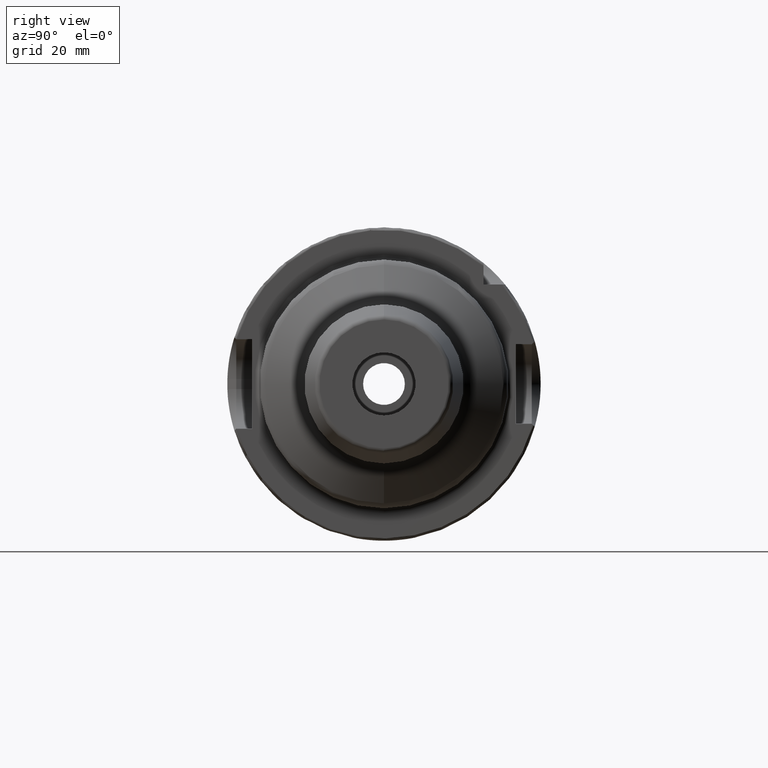
[diagram: clean part render]
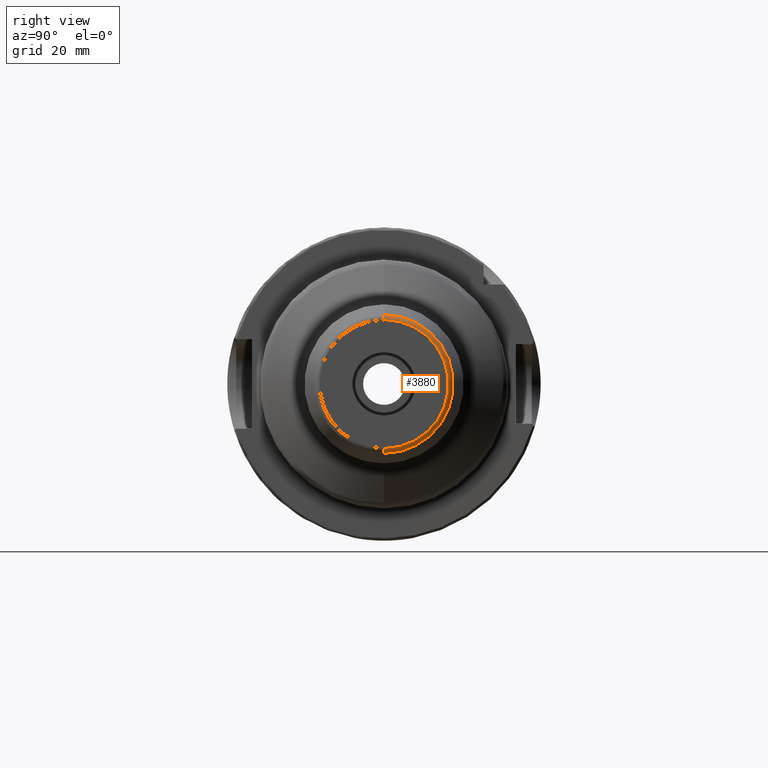
[diagram: same view with one face highlighted and labeled with its STEP entity id]
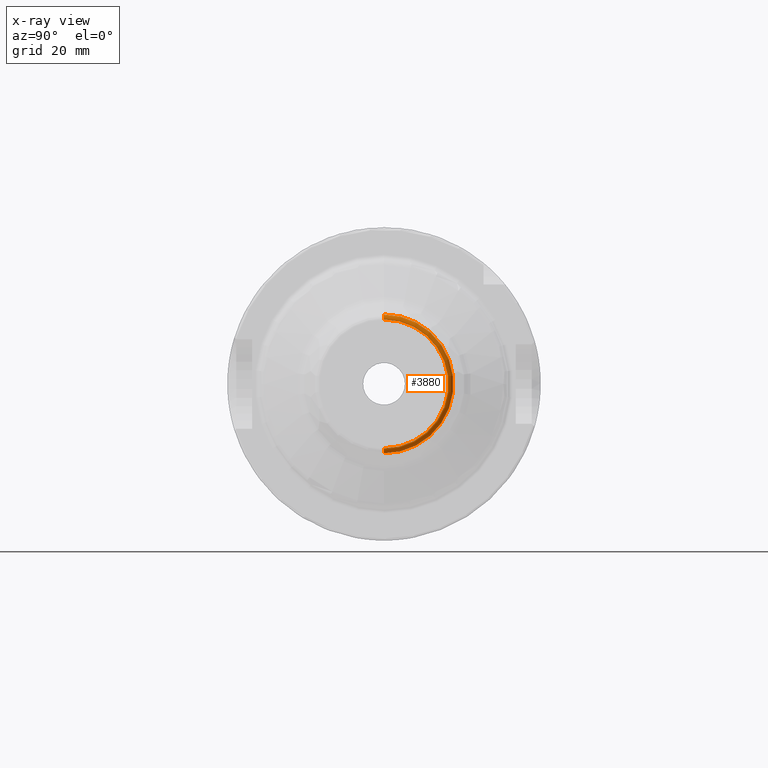
[diagram: x-ray of the same camera — body ghosted, the highlighted face saturated]
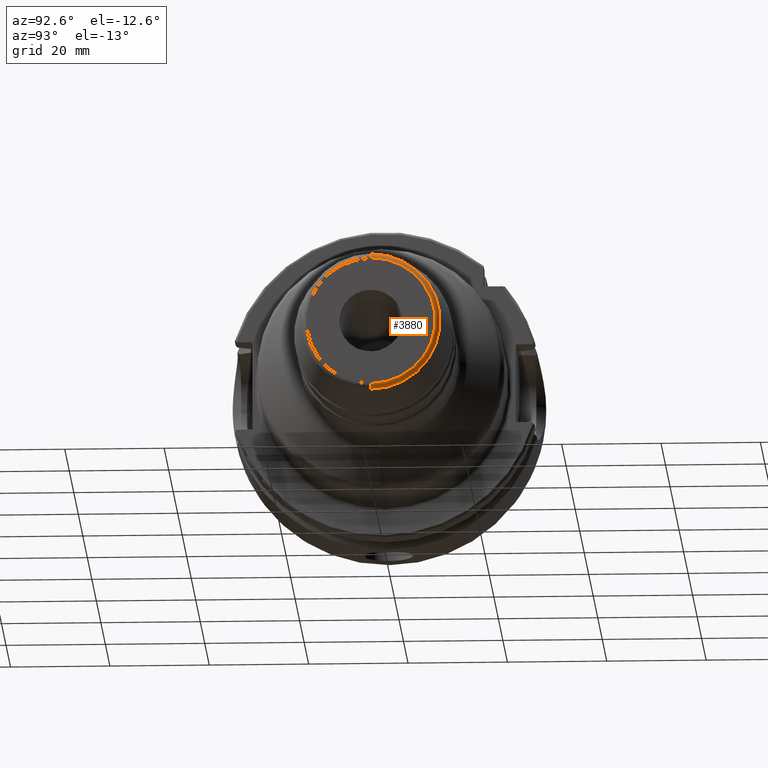
[diagram: same view with one face highlighted and labeled with its STEP entity id]
A machine part, right view. The second image highlights one B-rep face of the part: STEP entity #3880.
The next image is the same camera in x-ray: the body ghosted, the highlighted face saturated — about 0% of this face is hidden behind the body in this view.
A second angle (auxiliary view) of the same face is appended — the face is thin or edge-on in the first view.
In plain terms, the highlighted toroidal blend (fillet) surface has major radius 12.9609 mm and minor (blend) radius 1 mm.
Its self-contained STEP definition (entity closure, byte-faithful):
#527=CARTESIAN_POINT('',(8.5E1,0.E0,0.E0));
#528=DIRECTION('',(1.E0,0.E0,0.E0));
#529=DIRECTION('',(0.E0,0.E0,-1.E0));
#530=AXIS2_PLACEMENT_3D('',#527,#528,#529);
#532=CARTESIAN_POINT('',(8.4E1,0.E0,-1.296090036882E1));
#533=DIRECTION('',(0.E0,1.E0,0.E0));
#534=DIRECTION('',(1.E0,0.E0,0.E0));
#535=AXIS2_PLACEMENT_3D('',#532,#533,#534);
#537=CARTESIAN_POINT('',(8.4E1,0.E0,1.296090036882E1));
#538=DIRECTION('',(0.E0,-1.E0,0.E0));
#539=DIRECTION('',(1.E0,0.E0,0.E0));
#540=AXIS2_PLACEMENT_3D('',#537,#538,#539);
#560=CARTESIAN_POINT('',(8.417364817767E1,0.E0,0.E0));
#561=DIRECTION('',(1.E0,0.E0,0.E0));
#562=DIRECTION('',(0.E0,0.E0,-1.E0));
#563=AXIS2_PLACEMENT_3D('',#560,#561,#562);
#3172=CARTESIAN_POINT('',(8.5E1,0.E0,-1.296090036882E1));
#3173=CARTESIAN_POINT('',(8.417364817767E1,0.E0,-1.394570812183E1));
#3174=VERTEX_POINT('',#3172);
#3175=VERTEX_POINT('',#3173);
#3232=CARTESIAN_POINT('',(8.5E1,0.E0,1.296090036882E1));
#3233=CARTESIAN_POINT('',(8.417364817767E1,0.E0,1.394570812183E1));
#3234=VERTEX_POINT('',#3232);
#3235=VERTEX_POINT('',#3233);
#3866=CARTESIAN_POINT('',(8.4E1,0.E0,0.E0));
#3867=DIRECTION('',(1.E0,0.E0,0.E0));
#3868=DIRECTION('',(0.E0,0.E0,1.E0));
#3869=AXIS2_PLACEMENT_3D('',#3866,#3867,#3868);
#3870=TOROIDAL_SURFACE('',#3869,1.296090036882E1,1.E0);
#3872=ORIENTED_EDGE('',*,*,#3871,.F.);
#3873=ORIENTED_EDGE('',*,*,#3855,.T.);
#3875=ORIENTED_EDGE('',*,*,#3874,.T.);
#3877=ORIENTED_EDGE('',*,*,#3876,.F.);
#3878=EDGE_LOOP('',(#3872,#3873,#3875,#3877));
#3879=FACE_OUTER_BOUND('',#3878,.F.);
#3880=ADVANCED_FACE('',(#3879),#3870,.T.);
#531=CIRCLE('',#530,1.296090036882E1);
#536=CIRCLE('',#535,1.E0);
#541=CIRCLE('',#540,1.E0);
#564=CIRCLE('',#563,1.394570812183E1);
#3855=EDGE_CURVE('',#3174,#3234,#531,.T.);
#3871=EDGE_CURVE('',#3174,#3175,#536,.T.);
#3874=EDGE_CURVE('',#3234,#3235,#541,.T.);
#3876=EDGE_CURVE('',#3175,#3235,#564,.T.);